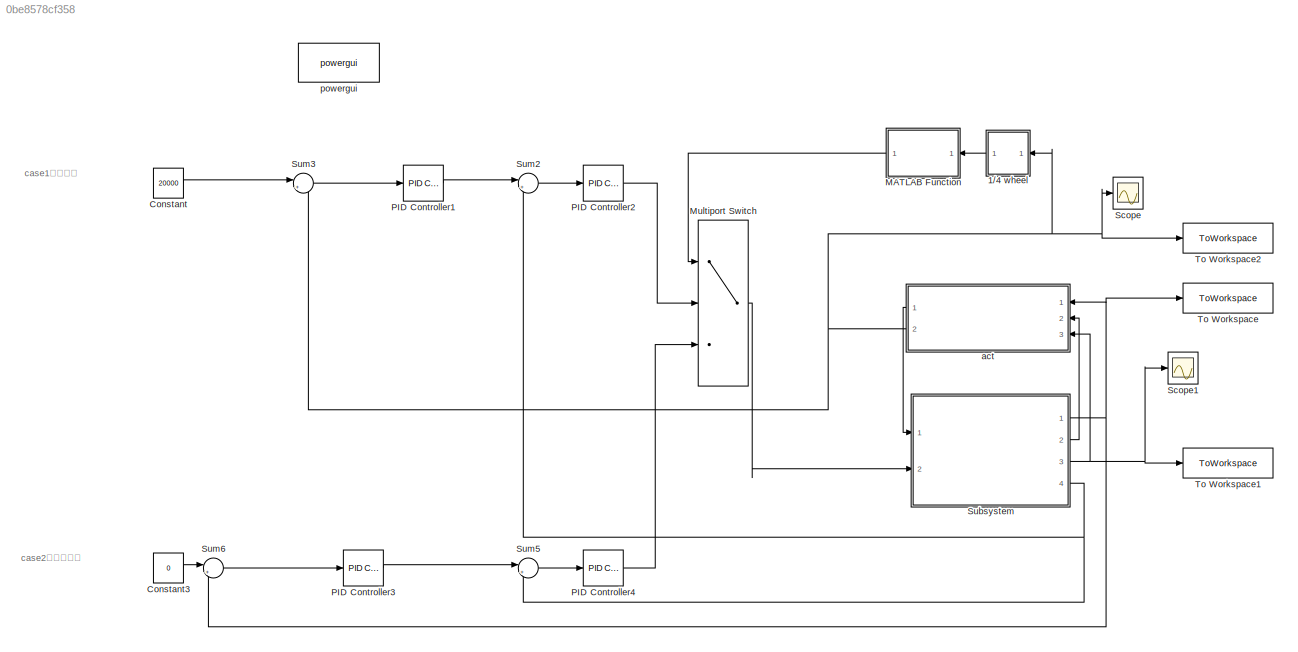
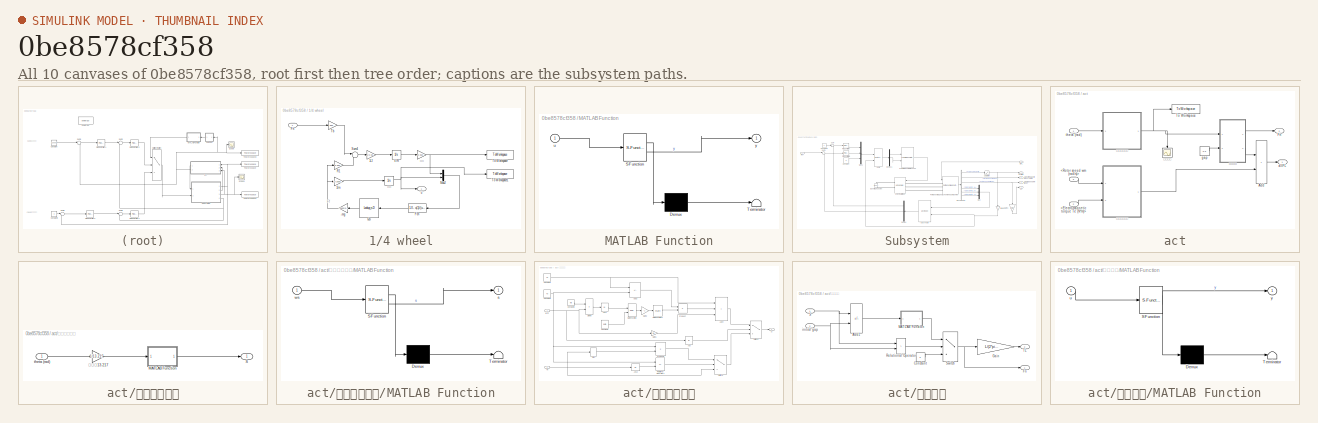
[diagram: thumbnail index - all 10 canvases of the model, root first then tree order]
MODEL slx_0be8578cf358
KIND model
CONFIG AbsTol = auto
CONFIG EnableMultiTasking = off
CONFIG FixedStep = 5e-5
CONFIG MaxStep = auto
CONFIG MinStep = auto
CONFIG RelTol = 1e-3
CONFIG SampleTimeConstraint = Unconstrained
CONFIG SolverName = FixedStepAuto
CONFIG StartTime = 0.0
CONFIG StopTime = 8
WORKSPACE source: mxarray member
WORKSPACE Bv = 0.001086
WORKSPACE L = 0.005
WORKSPACE Tc = 0.0192
WORKSPACE Ts = 0.0387
WORKSPACE Ws = 1
WORKSPACE deta = 1
WORKSPACE ng = 0.9
WORKSPACE ns = 0.9
BLOCK [SubSystem] 1//4 wheel
  NameLocation = top
  Ports = [1, 1]
BLOCK [Gain] 1//4 wheel/-mg
  Gain = -1600*9.8/4
BLOCK [Gain] 1//4 wheel/1//J
  Gain = 1/2.06
BLOCK [Gain] 1//4 wheel/1//m
  Gain = 1/(1600*0.25)
BLOCK [Fcn] 1//4 wheel/Fcn
  Expr = 1.0 - u(1)/(u(2) + (u(2)==0)*eps)
  NameLocation = top
BLOCK [Inport] 1//4 wheel/Fn
BLOCK [Mux] 1//4 wheel/Mux2
  DisplayOption = bar
  Inputs = 2
  Ports = [2, 1]
BLOCK [Gain] 1//4 wheel/R1
  Gain = 0.350
BLOCK [Sum] 1//4 wheel/Sum4
  Inputs = |-+
  Ports = [2, 1]
BLOCK [Gain] 1//4 wheel/Tb
  Gain = 600
BLOCK [ToWorkspace] 1//4 wheel/To Workspace
  FixptAsFi = on
  MaxDataPoints = inf
  Ports = [1]
  SampleTime = -1
  SaveFormat = Structure With Time
  VariableName = Vwheel
BLOCK [ToWorkspace] 1//4 wheel/To Workspace1
  FixptAsFi = on
  MaxDataPoints = inf
  Ports = [1]
  SampleTime = -1
  SaveFormat = Structure With Time
  VariableName = Vcar
BLOCK [Integrator] 1//4 wheel/V//R
  InitialCondition = 40/0.350
  LimitOutput = on
  LowerSaturationLimit = 0
  Ports = [1, 1]
  UpperSaturationLimit = 1000
BLOCK [Lookup_n-D] 1//4 wheel/s2u
  BreakpointsForDimension1 = [0;0.05;0.1;0.15;0.2;0.25;0.3;0.35;0.4;0.45;0.5;0.55;0.6;0.65;0.7;0.75;0.8;0.85;0.9;0.95;1]
  InputPortMap = u0
  InternalRulePriority = Speed
  NumberOfTableDimensions = 1
  Ports = [1, 1]
  RndMeth = Simplest
  Table = [0;0.4;0.8;0.97;1;0.98;0.96;0.94;0.92;0.9;0.88;0.855;0.83;0.81;0.79;0.77;0.75;0.73;0.72;0.71;0.7]
BLOCK [Outport] 1//4 wheel/u
BLOCK [Integrator] 1//4 wheel/车速
  InitialCondition = 40
  LimitOutput = on
  LowerSaturationLimit = 0
  Ports = [1, 2]
  ShowSaturationPort = on
  UpperSaturationLimit = 100
BLOCK [Gain] 1//4 wheel/轮速
  Gain = 0.350
BLOCK [Constant] Constant
  Value = 20000
BLOCK [Constant] Constant3
  Value = 0
  VectorParams1D = off
BLOCK [SubSystem] MATLAB Function
  ErrorFcn = Stateflow.Translate.translate
  NameLocation = top
  PermitHierarchicalResolution = ExplicitOnly
  Ports = [1, 1]
  SFBlockType = MATLAB Function
  TreatAsAtomicUnit = on
BLOCK [Demux] MATLAB Function/ Demux 
  Outputs = 1
  Ports = [1, 1]
BLOCK [S-Function] MATLAB Function/ SFunction 
  EnableBusSupport = on
  FunctionName = sf_sfun
  PortCounts = [1 2]
  Ports = [1, 2]
  SFcnIsStateOwnerBlock = off
  SFunctionDeploymentMode = off
  Tag = Stateflow S-Function 3
BLOCK [Terminator] MATLAB Function/ Terminator 
BLOCK [Inport] MATLAB Function/u
BLOCK [Outport] MATLAB Function/y
BLOCK [MultiPortSwitch] Multiport Switch
  DiagnosticForDefault = None
  InputSameDT = off
  Inputs = 2
  Ports = [3, 1]
  SaturateOnIntegerOverflow = off
BLOCK [Reference] PID Controller1  REF=pid_lib/PID Controller
  Ports = [1, 1]
  SourceBlock = pid_lib/PID Controller
  SourceType = PID 1dof
BLOCK [Reference] PID Controller2  REF=pid_lib/PID Controller
  Ports = [1, 1]
  SourceBlock = pid_lib/PID Controller
  SourceType = PID 1dof
BLOCK [Reference] PID Controller3  REF=pid_lib/PID Controller
  Ports = [1, 1]
  SourceBlock = pid_lib/PID Controller
  SourceType = PID 1dof
BLOCK [Reference] PID Controller4  REF=pid_lib/PID Controller
  Ports = [1, 1]
  SourceBlock = pid_lib/PID Controller
  SourceType = PID 1dof
BLOCK [Scope] Scope
  Floating = off
  NumInputPorts = 1
  Ports = [1]
  ScopeSpecificationString = Simulink.scopes.TimeScopeBlockCfg('CurrentConfiguration', extmgr.ConfigurationSet(extmgr.Configuration('Core','General UI',true),extmgr.Configuration('Core','Source UI',true),extmgr.Configuration('Sources','WiredSimulink',true,'DataLoggingVariableName','ScopeData1'),extmgr.Configuration('Visuals','Time Domain',true,'SerializedDisplays',{struct('MinYLimReal','-2073.31798','MaxYLimReal','18659.86185...<+1815ch>
BLOCK [Scope] Scope1
  Floating = off
  NumInputPorts = 1
  Ports = [1]
  ScopeSpecificationString = Simulink.scopes.TimeScopeBlockCfg('CurrentConfiguration', extmgr.ConfigurationSet(extmgr.Configuration('Core','General UI',true),extmgr.Configuration('Core','Source UI',true),extmgr.Configuration('Sources','WiredSimulink',true,'DataLoggingVariableName','ScopeData1'),extmgr.Configuration('Visuals','Time Domain',true,'SerializedDisplays',{struct('MinYLimReal','-815.20652','MaxYLimReal','591.35687','...<+1456ch>
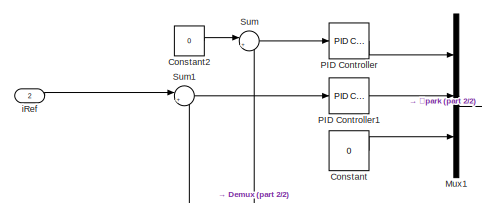
[diagram: Subsystem - part 1/2, top left region]
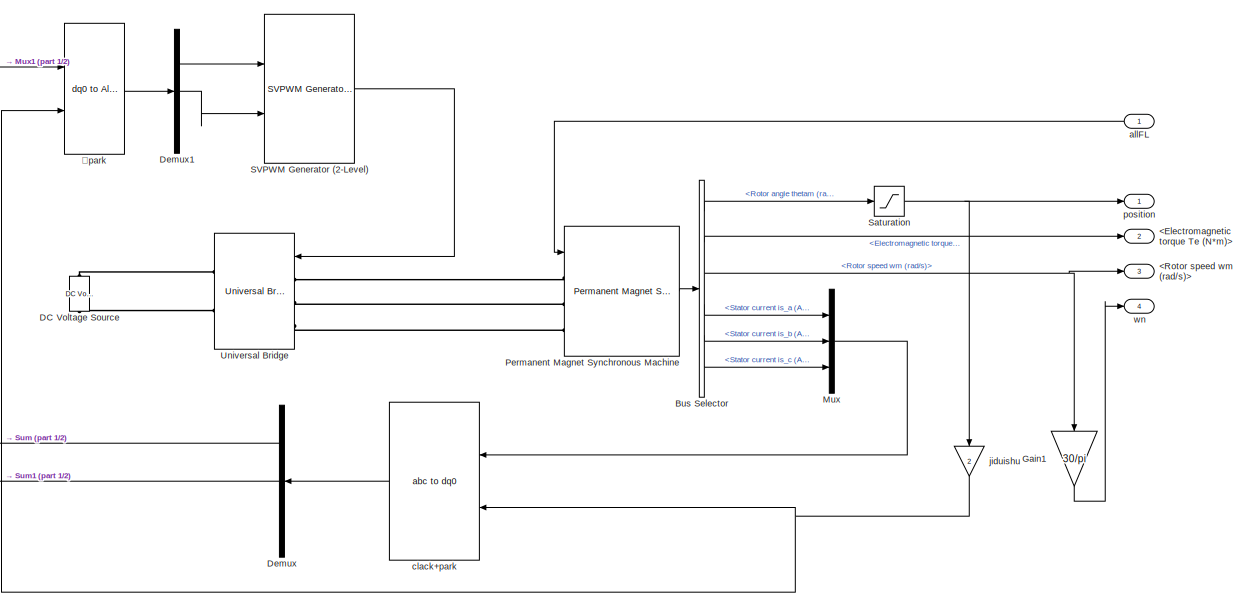
[diagram: Subsystem - part 2/2, center side, full height]
BLOCK [SubSystem] Subsystem
  Ports = [2, 4]
BLOCK [Outport] Subsystem/<Electromagnetic torque Te (N*m)>
  NameLocation = top
  Port = 2
BLOCK [Outport] Subsystem/<Rotor speed wm (rad//s)>
  NameLocation = top
  Port = 3
BLOCK [BusSelector] Subsystem/Bus Selector
  OutputSignals = Rotor angle thetam (rad),Electromagnetic torque Te (N*m),Rotor speed wm (rad/s),Stator current is_a (A),Stator current is_b (A),Stator current is_c (A)
  Ports = [1, 6]
BLOCK [Constant] Subsystem/Constant
  SampleTime = -1
  Value = 0
  VectorParams1D = off
BLOCK [Constant] Subsystem/Constant2
  Value = 0
BLOCK [Reference] Subsystem/DC Voltage Source  REF=powerlib/Electrical Sources/DC Voltage Source
  NameLocation = right
  Ports = [0, 0, 0, 0, 0, 1, 1]
  SourceBlock = powerlib/Electrical Sources/DC Voltage Source
  SourceType = DC Voltage Source
BLOCK [Demux] Subsystem/Demux
  Outputs = 3
  Ports = [1, 3]
BLOCK [Demux] Subsystem/Demux1
  Outputs = 3
  Ports = [1, 3]
BLOCK [Gain] Subsystem/Gain1
  Gain = 30/pi
  NameLocation = left
BLOCK [Mux] Subsystem/Mux
  DisplayOption = bar
  Inputs = 3
  Ports = [3, 1]
BLOCK [Mux] Subsystem/Mux1
  DisplayOption = bar
  Inputs = 3
  Ports = [3, 1]
BLOCK [Reference] Subsystem/PID Controller  REF=pid_lib/PID Controller
  Ports = [1, 1]
  SourceBlock = pid_lib/PID Controller
  SourceType = PID 1dof
BLOCK [Reference] Subsystem/PID Controller1  REF=pid_lib/PID Controller
  Ports = [1, 1]
  SourceBlock = pid_lib/PID Controller
  SourceType = PID 1dof
BLOCK [Reference] Subsystem/Permanent Magnet Synchronous Machine  REF=powerlib/Machines/Permanent Magnet Synchronous Machine
  Ports = [1, 1, 0, 0, 0, 3]
  SourceBlock = powerlib/Machines/Permanent Magnet Synchronous Machine
  SourceType = Permanent Magnet Synchronous Machine
BLOCK [Reference] Subsystem/SVPWM Generator (2-Level)  REF=powerlib_meascontrol/Pulse & Signal Generators/SVPWM Generator (2-Level)
  Ports = [2, 1]
  SourceBlock = powerlib_meascontrol/Pulse & Signal Generators/SVPWM Generator (2-Level)
  SourceType = SVPWM Generator (2-Level)
BLOCK [Saturate] Subsystem/Saturation
  LinearizeAsGain = off
  LowerLimit = 0
  UpperLimit = 10000000000
BLOCK [Sum] Subsystem/Sum
  Inputs = |+-
  Ports = [2, 1]
BLOCK [Sum] Subsystem/Sum1
  Inputs = |+-
  Ports = [2, 1]
BLOCK [Reference] Subsystem/Universal Bridge  REF=powerlib/Power Electronics/Universal Bridge
  Ports = [1, 0, 0, 0, 0, 3, 2]
  SourceBlock = powerlib/Power Electronics/Universal Bridge
  SourceType = Universal Bridge
BLOCK [Inport] Subsystem/allFL
BLOCK [Reference] Subsystem/clack+park  REF=powerlib_meascontrol/Transformations/abc to dq0
  Ports = [2, 1]
  SourceBlock = powerlib_meascontrol/Transformations/abc to dq0
  SourceType = abc to dq0 Transformation
BLOCK [Inport] Subsystem/iRef
  Port = 2
BLOCK [Gain] Subsystem/jiduishu
  Gain = 2
  NameLocation = left
BLOCK [Outport] Subsystem/position
  NameLocation = top
BLOCK [Outport] Subsystem/wn
  NameLocation = top
  Port = 4
BLOCK [Reference] Subsystem/反park  REF=powerlib_meascontrol/Transformations/dq0 to Alpha-Beta-Zero
  Ports = [2, 1]
  SourceBlock = powerlib_meascontrol/Transformations/dq0 to Alpha-Beta-Zero
  SourceType = dq0 to Alpha-Beta-Zero Transformation
BLOCK [Sum] Sum2
  Inputs = |+-
  Ports = [2, 1]
BLOCK [Sum] Sum3
  Inputs = |+-
  Ports = [2, 1]
BLOCK [Sum] Sum5
  Inputs = |+-
  Ports = [2, 1]
BLOCK [Sum] Sum6
  Inputs = |+-
  Ports = [2, 1]
BLOCK [ToWorkspace] To Workspace
  FixptAsFi = on
  MaxDataPoints = inf
  Ports = [1]
  SampleTime = -1
  SaveFormat = Structure With Time
  VariableName = position
BLOCK [ToWorkspace] To Workspace1
  FixptAsFi = on
  MaxDataPoints = inf
  Ports = [1]
  SampleTime = -1
  SaveFormat = Structure With Time
  VariableName = speed_wn
BLOCK [ToWorkspace] To Workspace2
  FixptAsFi = on
  MaxDataPoints = inf
  Ports = [1]
  SampleTime = -1
  SaveFormat = Structure With Time
  VariableName = Fn
BLOCK [SubSystem] act
  NameLocation = top
  Ports = [3, 2]
BLOCK [Inport] act/ theta (rad)
BLOCK [Inport] act/<Electromagnetic torque Te (N*m)>
  Port = 2
BLOCK [Inport] act/<Rotor speed wm (rad//s)>
  Port = 3
BLOCK [Sum] act/Add
  IconShape = rectangular
  NameLocation = top
  Ports = [2, 1]
BLOCK [Outport] act/Fn
  NameLocation = top
  Port = 2
BLOCK [ToWorkspace] act/To Workspace
  FixptAsFi = on
  MaxDataPoints = inf
  Ports = [1]
  SampleTime = -1
  SaveFormat = Structure With Time
  VariableName = s
BLOCK [Outport] act/allFL
  NameLocation = top
BLOCK [Constant] act/gap
  NameLocation = top
  Value = 0.3
BLOCK [SubSystem] act/传动机构模型
  NameLocation = top
  Ports = [1, 1]
BLOCK [Inport] act/传动机构模型/ theta (rad)
BLOCK [SubSystem] act/传动机构模型/MATLAB Function
  ErrorFcn = Stateflow.Translate.translate
  PermitHierarchicalResolution = ExplicitOnly
  Ports = [1, 1]
  SFBlockType = MATLAB Function
  TreatAsAtomicUnit = on
BLOCK [Demux] act/传动机构模型/MATLAB Function/ Demux 
  Outputs = 1
  Ports = [1, 1]
BLOCK [S-Function] act/传动机构模型/MATLAB Function/ SFunction 
  EnableBusSupport = on
  FunctionName = sf_sfun
  PortCounts = [1 2]
  Ports = [1, 2]
  SFcnIsStateOwnerBlock = off
  SFunctionDeploymentMode = off
  Tag = Stateflow S-Function 1
BLOCK [Terminator] act/传动机构模型/MATLAB Function/ Terminator 
BLOCK [Outport] act/传动机构模型/MATLAB Function/s
BLOCK [Inport] act/传动机构模型/MATLAB Function/ws
BLOCK [Outport] act/传动机构模型/S
  VectorParamsAs1DForOutWhenUnconnected = off
BLOCK [Gain] act/传动机构模型/传动比13.217
  Gain = 1/13.217
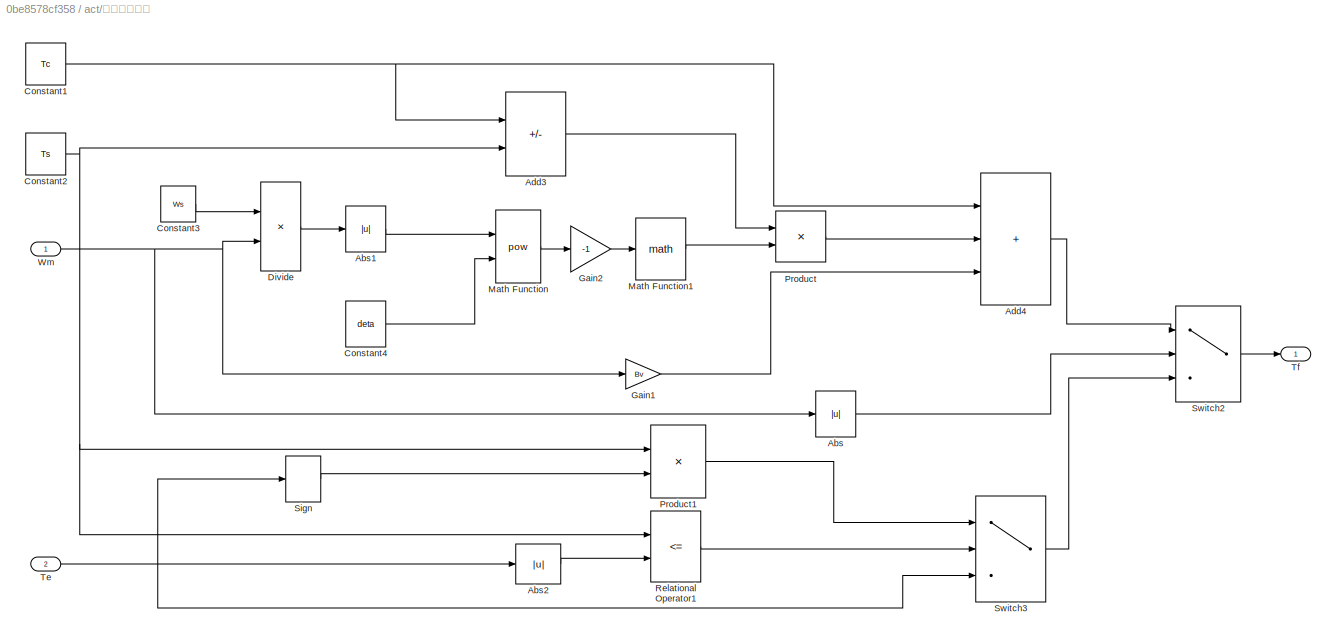
BLOCK [SubSystem] act/电机摩擦模型
  NameLocation = top
  Ports = [2, 1]
BLOCK [Abs] act/电机摩擦模型/Abs
  SaturateOnIntegerOverflow = off
BLOCK [Abs] act/电机摩擦模型/Abs1
  SaturateOnIntegerOverflow = off
BLOCK [Abs] act/电机摩擦模型/Abs2
  SaturateOnIntegerOverflow = off
BLOCK [Sum] act/电机摩擦模型/Add3
  IconShape = rectangular
  Inputs = -+
  Ports = [2, 1]
BLOCK [Sum] act/电机摩擦模型/Add4
  IconShape = rectangular
  Inputs = +++
  Ports = [3, 1]
BLOCK [Constant] act/电机摩擦模型/Constant1
  Value = Tc
BLOCK [Constant] act/电机摩擦模型/Constant2
  Value = Ts
BLOCK [Constant] act/电机摩擦模型/Constant3
  Value = Ws
BLOCK [Constant] act/电机摩擦模型/Constant4
  Value = deta
BLOCK [Product] act/电机摩擦模型/Divide
  Inputs = /*
  Ports = [2, 1]
BLOCK [Gain] act/电机摩擦模型/Gain1
  Gain = Bv
BLOCK [Gain] act/电机摩擦模型/Gain2
  Gain = -1
BLOCK [Math] act/电机摩擦模型/Math Function
  Operator = pow
  Ports = [2, 1]
  SignedPower = on
BLOCK [Math] act/电机摩擦模型/Math Function1
  Ports = [1, 1]
  SignedPower = on
BLOCK [Product] act/电机摩擦模型/Product
  Ports = [2, 1]
BLOCK [Product] act/电机摩擦模型/Product1
  Ports = [2, 1]
BLOCK [RelationalOperator] act/电机摩擦模型/Relational Operator1
  InputSameDT = off
  Operator = <=
  OutDataTypeStr = boolean
  Ports = [2, 1]
  RndMeth = Simplest
BLOCK [Signum] act/电机摩擦模型/Sign
BLOCK [Switch] act/电机摩擦模型/Switch2
  Criteria = u2 > Threshold
  InputSameDT = off
  SaturateOnIntegerOverflow = off
BLOCK [Switch] act/电机摩擦模型/Switch3
  Criteria = u2 > Threshold
  InputSameDT = off
  SaturateOnIntegerOverflow = off
BLOCK [Inport] act/电机摩擦模型/Te
  Port = 2
BLOCK [Outport] act/电机摩擦模型/Tf
  VectorParamsAs1DForOutWhenUnconnected = off
BLOCK [Inport] act/电机摩擦模型/Wm
BLOCK [Scope] act/螺母位移
  Floating = off
  NameLocation = left
  NumInputPorts = 1
  Ports = [1]
  ScopeSpecificationString = Simulink.scopes.TimeScopeBlockCfg('CurrentConfiguration', extmgr.ConfigurationSet(extmgr.Configuration('Core','General UI',true),extmgr.Configuration('Core','Source UI',true),extmgr.Configuration('Sources','WiredSimulink',true,'DataLoggingVariableName','ScopeData4'),extmgr.Configuration('Visuals','Time Domain',true,'SerializedDisplays',{struct('MinYLimReal','-0.11705','MaxYLimReal','1.05343','YLab...<+1763ch>
BLOCK [SubSystem] act/负载模型
  NameLocation = top
  Ports = [2, 2]
BLOCK [Sum] act/负载模型/Add1
  IconShape = rectangular
  Inputs = +-
  Ports = [2, 1]
BLOCK [Constant] act/负载模型/Constant
  Value = 0
BLOCK [Outport] act/负载模型/Fn
BLOCK [Gain] act/负载模型/Gain
  Gain = L/(2*pi*13.217)
BLOCK [SubSystem] act/负载模型/MATLAB Function
  ErrorFcn = Stateflow.Translate.translate
  PermitHierarchicalResolution = ExplicitOnly
  Ports = [1, 1]
  SFBlockType = MATLAB Function
  TreatAsAtomicUnit = on
BLOCK [Demux] act/负载模型/MATLAB Function/ Demux 
  Outputs = 1
  Ports = [1, 1]
BLOCK [S-Function] act/负载模型/MATLAB Function/ SFunction 
  EnableBusSupport = on
  FunctionName = sf_sfun
  PortCounts = [1 2]
  Ports = [1, 2]
  SFcnIsStateOwnerBlock = off
  SFunctionDeploymentMode = off
  Tag = Stateflow S-Function 2
BLOCK [Terminator] act/负载模型/MATLAB Function/ Terminator 
BLOCK [Inport] act/负载模型/MATLAB Function/u
BLOCK [Outport] act/负载模型/MATLAB Function/y
  VectorParamsAs1DForOutWhenUnconnected = off
BLOCK [RelationalOperator] act/负载模型/Relational Operator
  InputSameDT = off
  Operator = >
  OutDataTypeStr = boolean
  Ports = [2, 1]
  RndMeth = Simplest
BLOCK [Inport] act/负载模型/S
BLOCK [Switch] act/负载模型/Switch
  Criteria = u2 > Threshold
  InputSameDT = off
  SaturateOnIntegerOverflow = off
BLOCK [Outport] act/负载模型/TL
  Port = 2
  VectorParamsAs1DForOutWhenUnconnected = off
BLOCK [Inport] act/负载模型/initial gap
  Port = 2
BLOCK [Reference] powergui  REF=powerlib/powergui
  Ports = []
  Priority = 1
  SourceBlock = powerlib/powergui
  SourceType = PSB option menu block
ANNOTATION (root): case1：夹紧力
ANNOTATION (root): case2：转角位置
ANNOTATION 1//4 wheel: Ff
NET 1//4 wheel/-mg:1 -> 1//4 wheel/1//m:1, 1//4 wheel/R1:1
LINE 1//4 wheel/1//J:1 -> 1//4 wheel/V//R:1
LINE 1//4 wheel/1//m:1 -> 1//4 wheel/车速:1
LINE 1//4 wheel/Fcn:1 -> 1//4 wheel/s2u:1
LINE 1//4 wheel/Fn:1 -> 1//4 wheel/Tb:1
LINE 1//4 wheel/Mux2:1 -> 1//4 wheel/Fcn:1
LINE 1//4 wheel/R1:1 -> 1//4 wheel/Sum4:2
LINE 1//4 wheel/Sum4:1 -> 1//4 wheel/1//J:1
LINE 1//4 wheel/Tb:1 -> 1//4 wheel/Sum4:1
LINE 1//4 wheel/V//R:1 -> 1//4 wheel/轮速:1
LINE 1//4 wheel/s2u:1 -> 1//4 wheel/-mg:1
NET 1//4 wheel/车速:1 -> 1//4 wheel/Mux2:2, 1//4 wheel/To Workspace1:1, 1//4 wheel/u:1
NET 1//4 wheel/轮速:1 -> 1//4 wheel/Mux2:1, 1//4 wheel/To Workspace:1
LINE 1//4 wheel:1 -> MATLAB Function:1
LINE Constant3:1 -> Sum6:1
LINE Constant:1 -> Sum3:1
LINE MATLAB Function:1 -> Multiport Switch:1
LINE Multiport Switch:1 -> Subsystem:2
LINE PID Controller1:1 -> Sum2:1
LINE PID Controller2:1 -> Multiport Switch:2
LINE PID Controller3:1 -> Sum5:1
LINE PID Controller4:1 -> Multiport Switch:3
LINE Subsystem/Bus Selector:1 -> Subsystem/Saturation:1
LINE Subsystem/Bus Selector:2 -> Subsystem/<Electromagnetic torque Te (N*m)>:1
NET Subsystem/Bus Selector:3 -> Subsystem/<Rotor speed wm (rad//s)>:1, Subsystem/Gain1:1
LINE Subsystem/Bus Selector:4 -> Subsystem/Mux:1
LINE Subsystem/Bus Selector:5 -> Subsystem/Mux:2
LINE Subsystem/Bus Selector:6 -> Subsystem/Mux:3
LINE Subsystem/Constant2:1 -> Subsystem/Sum:1
LINE Subsystem/Constant:1 -> Subsystem/Mux1:3
LINE Subsystem/Demux1:1 -> Subsystem/SVPWM Generator (2-Level):1
LINE Subsystem/Demux1:2 -> Subsystem/SVPWM Generator (2-Level):2
LINE Subsystem/Demux:1 -> Subsystem/Sum:2
LINE Subsystem/Demux:2 -> Subsystem/Sum1:2
LINE Subsystem/Gain1:1 -> Subsystem/wn:1
LINE Subsystem/Mux1:1 -> Subsystem/反park:1
LINE Subsystem/Mux:1 -> Subsystem/clack+park:1
LINE Subsystem/PID Controller1:1 -> Subsystem/Mux1:2
LINE Subsystem/PID Controller:1 -> Subsystem/Mux1:1
LINE Subsystem/Permanent Magnet Synchronous Machine:1 -> Subsystem/Bus Selector:1
LINE Subsystem/SVPWM Generator (2-Level):1 -> Subsystem/Universal Bridge:1
NET Subsystem/Saturation:1 -> Subsystem/jiduishu:1, Subsystem/position:1
LINE Subsystem/Sum1:1 -> Subsystem/PID Controller1:1
LINE Subsystem/Sum:1 -> Subsystem/PID Controller:1
LINE Subsystem/allFL:1 -> Subsystem/Permanent Magnet Synchronous Machine:1
LINE Subsystem/clack+park:1 -> Subsystem/Demux:1
LINE Subsystem/iRef:1 -> Subsystem/Sum1:1
NET Subsystem/jiduishu:1 -> Subsystem/clack+park:2, Subsystem/反park:2
LINE Subsystem/反park:1 -> Subsystem/Demux1:1
NET Subsystem:1 -> Sum6:2, To Workspace:1, act:1
LINE Subsystem:2 -> act:2
NET Subsystem:3 -> Scope1:1, To Workspace1:1, act:3
NET Subsystem:4 -> Sum2:2, Sum5:2
LINE Sum2:1 -> PID Controller2:1
LINE Sum3:1 -> PID Controller1:1
LINE Sum5:1 -> PID Controller4:1
LINE Sum6:1 -> PID Controller3:1
LINE act/ theta (rad):1 -> act/传动机构模型:1
LINE act/<Electromagnetic torque Te (N*m)>:1 -> act/电机摩擦模型:2
LINE act/<Rotor speed wm (rad//s)>:1 -> act/电机摩擦模型:1
LINE act/Add:1 -> act/allFL:1
LINE act/gap:1 -> act/负载模型:2
LINE act/传动机构模型/ theta (rad):1 -> act/传动机构模型/传动比13.217:1
LINE act/传动机构模型/MATLAB Function:1 -> act/传动机构模型/S:1
LINE act/传动机构模型/传动比13.217:1 -> act/传动机构模型/MATLAB Function:1
NET act/传动机构模型:1 -> act/To Workspace:1, act/螺母位移:1, act/负载模型:1
LINE act/电机摩擦模型/Abs1:1 -> act/电机摩擦模型/Math Function:1
LINE act/电机摩擦模型/Abs2:1 -> act/电机摩擦模型/Relational Operator1:2
LINE act/电机摩擦模型/Abs:1 -> act/电机摩擦模型/Switch2:2
LINE act/电机摩擦模型/Add3:1 -> act/电机摩擦模型/Product:1
LINE act/电机摩擦模型/Add4:1 -> act/电机摩擦模型/Switch2:1
NET act/电机摩擦模型/Constant1:1 -> act/电机摩擦模型/Add3:1, act/电机摩擦模型/Add4:1
NET act/电机摩擦模型/Constant2:1 -> act/电机摩擦模型/Add3:2, act/电机摩擦模型/Product1:1, act/电机摩擦模型/Relational Operator1:1
LINE act/电机摩擦模型/Constant3:1 -> act/电机摩擦模型/Divide:1
LINE act/电机摩擦模型/Constant4:1 -> act/电机摩擦模型/Math Function:2
LINE act/电机摩擦模型/Divide:1 -> act/电机摩擦模型/Abs1:1
LINE act/电机摩擦模型/Gain1:1 -> act/电机摩擦模型/Add4:3
LINE act/电机摩擦模型/Gain2:1 -> act/电机摩擦模型/Math Function1:1
LINE act/电机摩擦模型/Math Function1:1 -> act/电机摩擦模型/Product:2
LINE act/电机摩擦模型/Math Function:1 -> act/电机摩擦模型/Gain2:1
LINE act/电机摩擦模型/Product1:1 -> act/电机摩擦模型/Switch3:1
LINE act/电机摩擦模型/Product:1 -> act/电机摩擦模型/Add4:2
LINE act/电机摩擦模型/Relational Operator1:1 -> act/电机摩擦模型/Switch3:2
LINE act/电机摩擦模型/Sign:1 -> act/电机摩擦模型/Product1:2
LINE act/电机摩擦模型/Switch2:1 -> act/电机摩擦模型/Tf:1
LINE act/电机摩擦模型/Switch3:1 -> act/电机摩擦模型/Switch2:3
NET act/电机摩擦模型/Te:1 -> act/电机摩擦模型/Abs2:1, act/电机摩擦模型/Sign:1, act/电机摩擦模型/Switch3:3
NET act/电机摩擦模型/Wm:1 -> act/电机摩擦模型/Abs:1, act/电机摩擦模型/Divide:2, act/电机摩擦模型/Gain1:1
LINE act/电机摩擦模型:1 -> act/Add:2
LINE act/负载模型/Add1:1 -> act/负载模型/MATLAB Function:1
LINE act/负载模型/Constant:1 -> act/负载模型/Switch:3
LINE act/负载模型/Gain:1 -> act/负载模型/TL:1
LINE act/负载模型/MATLAB Function:1 -> act/负载模型/Switch:1
LINE act/负载模型/Relational Operator:1 -> act/负载模型/Switch:2
NET act/负载模型/S:1 -> act/负载模型/Add1:1, act/负载模型/Relational Operator:1
NET act/负载模型/Switch:1 -> act/负载模型/Fn:1, act/负载模型/Gain:1
NET act/负载模型/initial gap:1 -> act/负载模型/Add1:2, act/负载模型/Relational Operator:2
LINE act/负载模型:1 -> act/Fn:1
LINE act/负载模型:2 -> act/Add:1
LINE act:1 -> Subsystem:1
NET act:2 -> 1//4 wheel:1, Scope:1, Sum3:2, To Workspace2:1
PLINE Subsystem/DC Voltage Source:LConn1 -- Subsystem/Universal Bridge:RConn2
PLINE Subsystem/DC Voltage Source:RConn1 -- Subsystem/Universal Bridge:RConn1
PLINE Subsystem/Permanent Magnet Synchronous Machine:LConn1 -- Subsystem/Universal Bridge:LConn1
PLINE Subsystem/Permanent Magnet Synchronous Machine:LConn2 -- Subsystem/Universal Bridge:LConn2
PLINE Subsystem/Permanent Magnet Synchronous Machine:LConn3 -- Subsystem/Universal Bridge:LConn3
note: NET lines group one-source signal fan-out (src -> all destinations, sorted); 1:1 wires keep LINE
CHART act/负载模型/MATLAB Function states=1 transitions=1
  STATE_LABEL 'eML_blk_kernel()'
  STATE_LABEL 'SCRIPT:\nfunction y = fcn(u)\nif u>0.112\n   y=-1805*u^3+27290*u^2-6036*u+376.2\nelse\n   y=356.767*u\nend'
CHART MATLAB Function states=1 transitions=1
  STATE_LABEL 'eML_blk_kernel()'
  STATE_LABEL 'SCRIPT:\nfunction y = fcn(u)\n\nif u > 0\n    y = 1;\nelse\n    y = 2;\nend\n'
CHART act/传动机构模型/MATLAB Function states=1 transitions=1
  STATE_LABEL 'eML_blk_kernel()'
  STATE_LABEL 'SCRIPT:\nfunction s = fcn(ws)\n\ns = ((3.55+1.8)*(7.25+3.55)-1.8*7.25)*1.8*ws/((3.55+1.8)*(7.25+3.55)*2*pi);\nend'
CHART  states=0 transitions=0
CHART  states=0 transitions=0
CHART  states=0 transitions=0
